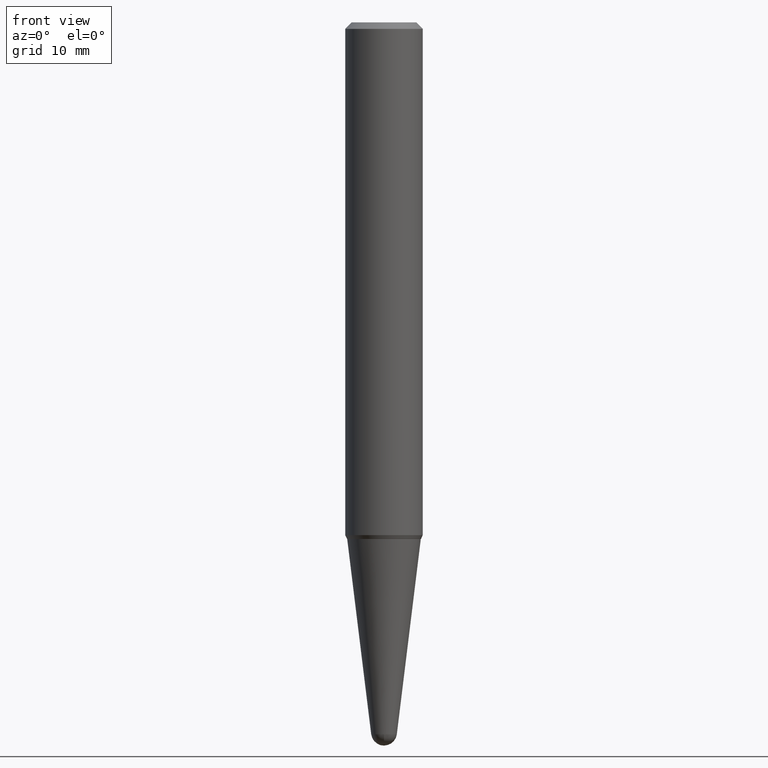
[diagram: clean part render]
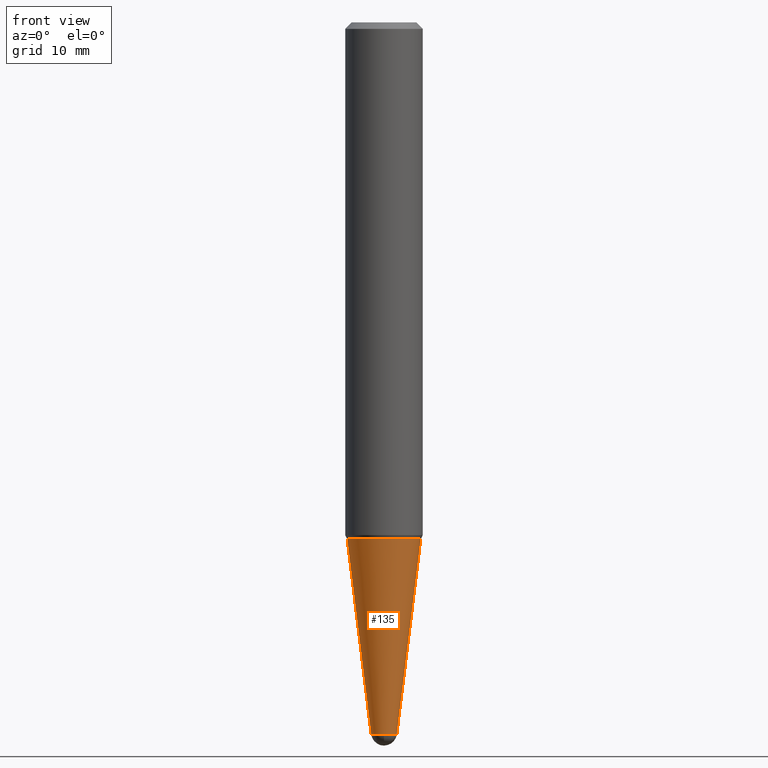
[diagram: same view with one face highlighted and labeled with its STEP entity id]
A machine part, front view. The second image highlights one B-rep face of the part: STEP entity #135.
In plain terms, the highlighted conical surface has half-angle 7 deg.
Its self-contained STEP definition (entity closure, byte-faithful):
#12 = DIRECTION ( 'NONE',  ( 1.000000000000000000, -6.982962677686273810E-15, 0.000000000000000000 ) ) ;
#24 = DIRECTION ( 'NONE',  ( 1.000000000000000000, -6.982962677686261189E-15, 0.000000000000000000 ) ) ;
#27 = VERTEX_POINT ( 'NONE', #62 ) ;
#30 = DIRECTION ( 'NONE',  ( 1.000000000000000000, -6.982962677686273810E-15, 0.000000000000000000 ) ) ;
#38 = ORIENTED_EDGE ( 'NONE', *, *, #319, .T. ) ;
#62 = CARTESIAN_POINT ( 'NONE',  ( -0.06203413447758302640, -9.525575862499874588E-15, -3.445116833962821534 ) ) ;
#66 = CARTESIAN_POINT ( 'NONE',  ( -4.407790362220312438E-16, -0.06203413447759470456, -3.445116833962821534 ) ) ;
#67 = AXIS2_PLACEMENT_3D ( 'NONE', #122, #157, #301 ) ;
#68 = VECTOR ( 'NONE', #197, 39.37007874015748143 ) ;
#70 = EDGE_CURVE ( 'NONE', #412, #110, #143, .T. ) ;
#90 = DIRECTION ( 'NONE',  ( -0.1218693434051475594, 4.331390133080061195E-15, 0.9925461516413219831 ) ) ;
#92 = EDGE_CURVE ( 'NONE', #27, #412, #225, .T. ) ;
#98 = EDGE_LOOP ( 'NONE', ( #221, #38, #398, #454, #435 ) ) ;
#110 = VERTEX_POINT ( 'NONE', #339 ) ;
#121 = CARTESIAN_POINT ( 'NONE',  ( -0.1780798899376515865, -7.463369625306297822E-15, -2.499999999999999556 ) ) ;
#122 = CARTESIAN_POINT ( 'NONE',  ( 8.424925751119379227E-29, -1.202856113591557066E-14, -3.445116833962821534 ) ) ;
#129 = AXIS2_PLACEMENT_3D ( 'NONE', #155, #413, #24 ) ;
#135 = ADVANCED_FACE ( 'NONE', ( #416 ), #257, .T. ) ;
#141 = VECTOR ( 'NONE', #90, 39.37007874015748143 ) ;
#143 = CIRCLE ( 'NONE', #129, 0.1780798899376515865 ) ;
#155 = CARTESIAN_POINT ( 'NONE',  ( 6.113672015462840371E-29, -8.728703347107863365E-15, -2.499999999999999556 ) ) ;
#157 = DIRECTION ( 'NONE',  ( -2.445468806185136597E-29, 3.491481338843145583E-15, 1.000000000000000000 ) ) ;
#183 = AXIS2_PLACEMENT_3D ( 'NONE', #238, #382, #12 ) ;
#194 = CIRCLE ( 'NONE', #183, 0.06203413447758302640 ) ;
#197 = DIRECTION ( 'NONE',  ( 0.1218693434051475594, 2.614447289843978112E-15, 0.9925461516413219831 ) ) ;
#202 = CARTESIAN_POINT ( 'NONE',  ( 8.424925751119379227E-29, -1.202856113591557066E-14, -3.445116833962821534 ) ) ;
#207 = EDGE_CURVE ( 'NONE', #314, #345, #194, .T. ) ;
#221 = ORIENTED_EDGE ( 'NONE', *, *, #92, .F. ) ;
#225 = LINE ( 'NONE', #266, #141 ) ;
#238 = CARTESIAN_POINT ( 'NONE',  ( 8.424925751119379227E-29, -1.202856113591557066E-14, -3.445116833962821534 ) ) ;
#253 = AXIS2_PLACEMENT_3D ( 'NONE', #202, #348, #30 ) ;
#254 = EDGE_CURVE ( 'NONE', #345, #110, #312, .T. ) ;
#257 = CONICAL_SURFACE ( 'NONE', #67, 0.06203413447758302640, 0.1221730476396031551 ) ;
#266 = CARTESIAN_POINT ( 'NONE',  ( -0.06203413447758302640, -1.158778209969345293E-14, -3.445116833962821534 ) ) ;
#301 = DIRECTION ( 'NONE',  ( 1.000000000000000000, -6.982962677686273810E-15, 0.000000000000000000 ) ) ;
#312 = LINE ( 'NONE', #423, #68 ) ;
#313 = CARTESIAN_POINT ( 'NONE',  ( 0.06203413447758302640, -1.121698587695203239E-14, -3.445116833962821534 ) ) ;
#314 = VERTEX_POINT ( 'NONE', #66 ) ;
#319 = EDGE_CURVE ( 'NONE', #27, #314, #405, .T. ) ;
#339 = CARTESIAN_POINT ( 'NONE',  ( 0.1780798899376515865, -9.972228572188961407E-15, -2.499999999999999556 ) ) ;
#345 = VERTEX_POINT ( 'NONE', #313 ) ;
#348 = DIRECTION ( 'NONE',  ( -2.445468806185136597E-29, 3.491481338843145583E-15, 1.000000000000000000 ) ) ;
#382 = DIRECTION ( 'NONE',  ( -2.445468806185136597E-29, 3.491481338843145583E-15, 1.000000000000000000 ) ) ;
#398 = ORIENTED_EDGE ( 'NONE', *, *, #207, .T. ) ;
#405 = CIRCLE ( 'NONE', #253, 0.06203413447758302640 ) ;
#412 = VERTEX_POINT ( 'NONE', #121 ) ;
#413 = DIRECTION ( 'NONE',  ( -2.445468806185136597E-29, 3.491481338843145583E-15, 1.000000000000000000 ) ) ;
#416 = FACE_OUTER_BOUND ( 'NONE', #98, .T. ) ;
#423 = CARTESIAN_POINT ( 'NONE',  ( 0.06203413447758302640, -1.246174318171510337E-14, -3.445116833962821534 ) ) ;
#435 = ORIENTED_EDGE ( 'NONE', *, *, #70, .F. ) ;
#454 = ORIENTED_EDGE ( 'NONE', *, *, #254, .T. ) ;